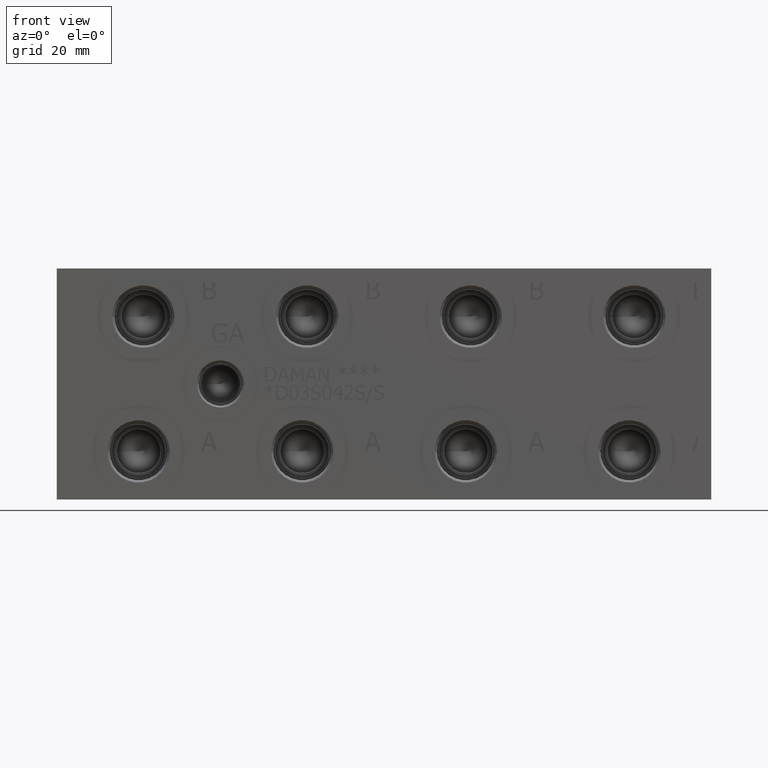
[diagram: clean part render]
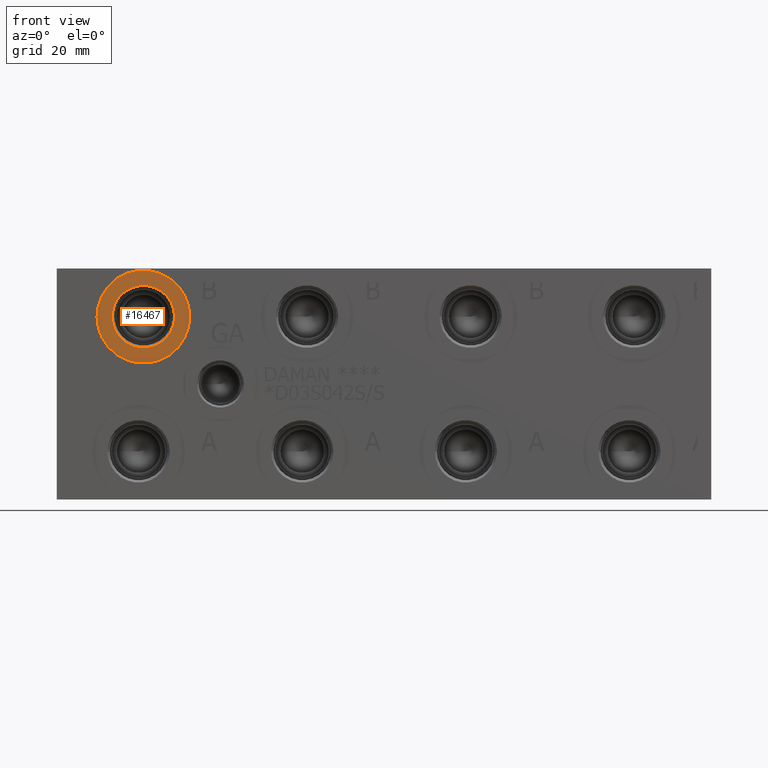
[diagram: same view with one face highlighted and labeled with its STEP entity id]
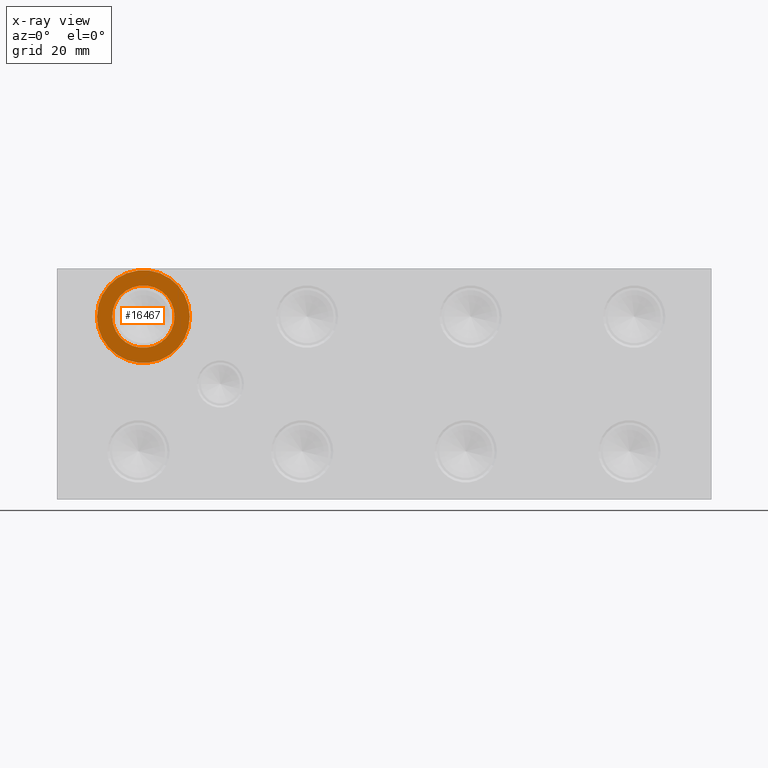
[diagram: x-ray of the same camera — body ghosted, the highlighted face saturated]
A machine part, front view. The second image highlights one B-rep face of the part: STEP entity #16467.
The next image is the same camera in x-ray: the body ghosted, the highlighted face saturated — about 0% of this face is hidden behind the body in this view.
In plain terms, the highlighted planar face has unit normal (0, 1, 0).
Its self-contained STEP definition (entity closure, byte-faithful):
#331=CIRCLE('',#17234,15.3162);
#332=CIRCLE('',#17235,15.3162);
#333=CIRCLE('',#17237,10.2997);
#334=CIRCLE('',#17238,10.2997);
#820=FACE_BOUND('',#3077,.T.);
#2125=FACE_OUTER_BOUND('',#3076,.T.);
#3076=EDGE_LOOP('',(#13556,#13557));
#3077=EDGE_LOOP('',(#13558,#13559));
#7413=VERTEX_POINT('',#27775);
#7414=VERTEX_POINT('',#27777);
#7415=VERTEX_POINT('',#27781);
#7416=VERTEX_POINT('',#27782);
#9580=EDGE_CURVE('',#7413,#7414,#331,.T.);
#9581=EDGE_CURVE('',#7414,#7413,#332,.T.);
#9582=EDGE_CURVE('',#7415,#7416,#333,.T.);
#9583=EDGE_CURVE('',#7416,#7415,#334,.T.);
#13556=ORIENTED_EDGE('',*,*,#9581,.F.);
#13557=ORIENTED_EDGE('',*,*,#9580,.F.);
#13558=ORIENTED_EDGE('',*,*,#9582,.T.);
#13559=ORIENTED_EDGE('',*,*,#9583,.T.);
#15241=PLANE('',#17236);
#16467=ADVANCED_FACE('',(#2125,#820),#15241,.F.);
#17234=AXIS2_PLACEMENT_3D('',#27778,#20104,#20105);
#17235=AXIS2_PLACEMENT_3D('',#27779,#20106,#20107);
#17236=AXIS2_PLACEMENT_3D('',#27780,#20108,#20109);
#17237=AXIS2_PLACEMENT_3D('',#27783,#20110,#20111);
#17238=AXIS2_PLACEMENT_3D('',#27784,#20112,#20113);
#20104=DIRECTION('center_axis',(0.,1.,0.));
#20105=DIRECTION('ref_axis',(1.,0.,0.));
#20106=DIRECTION('center_axis',(0.,1.,0.));
#20107=DIRECTION('ref_axis',(1.,0.,0.));
#20108=DIRECTION('center_axis',(0.,1.,0.));
#20109=DIRECTION('ref_axis',(0.,0.,1.));
#20110=DIRECTION('center_axis',(0.,1.,0.));
#20111=DIRECTION('ref_axis',(1.,0.,0.));
#20112=DIRECTION('center_axis',(0.,1.,0.));
#20113=DIRECTION('ref_axis',(1.,0.,0.));
#27775=CARTESIAN_POINT('',(13.2588,0.7874,60.325));
#27777=CARTESIAN_POINT('',(43.8912,0.7874,60.325));
#27778=CARTESIAN_POINT('Origin',(28.575,0.7874,60.325));
#27779=CARTESIAN_POINT('Origin',(28.575,0.7874,60.325));
#27780=CARTESIAN_POINT('Origin',(38.8747,0.7874,60.325));
#27781=CARTESIAN_POINT('',(38.8747,0.7874,60.325));
#27782=CARTESIAN_POINT('',(18.2753,0.787399999999999,60.325));
#27783=CARTESIAN_POINT('Origin',(28.575,0.7874,60.325));
#27784=CARTESIAN_POINT('Origin',(28.575,0.7874,60.325));